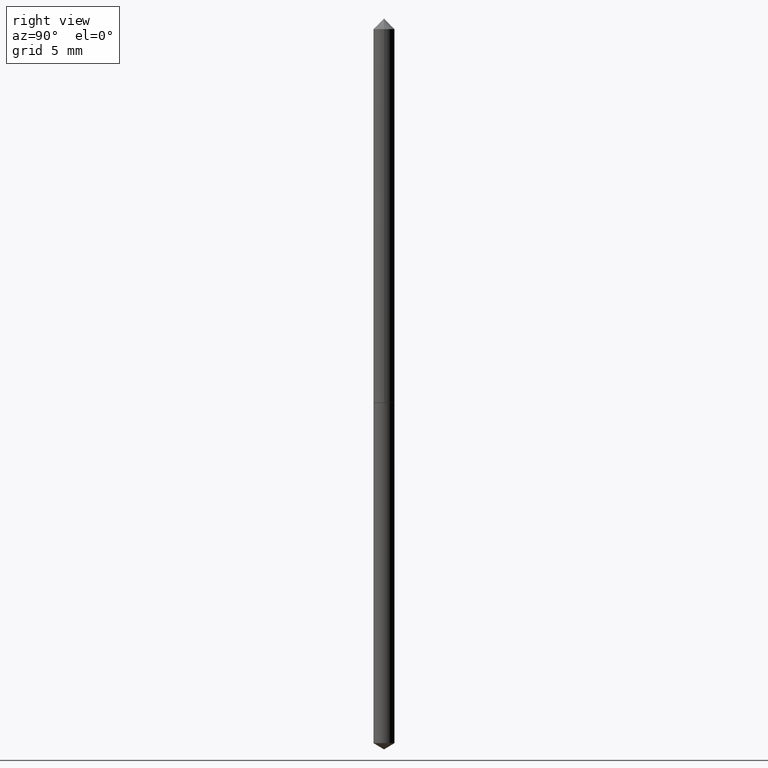
[diagram: clean part render]
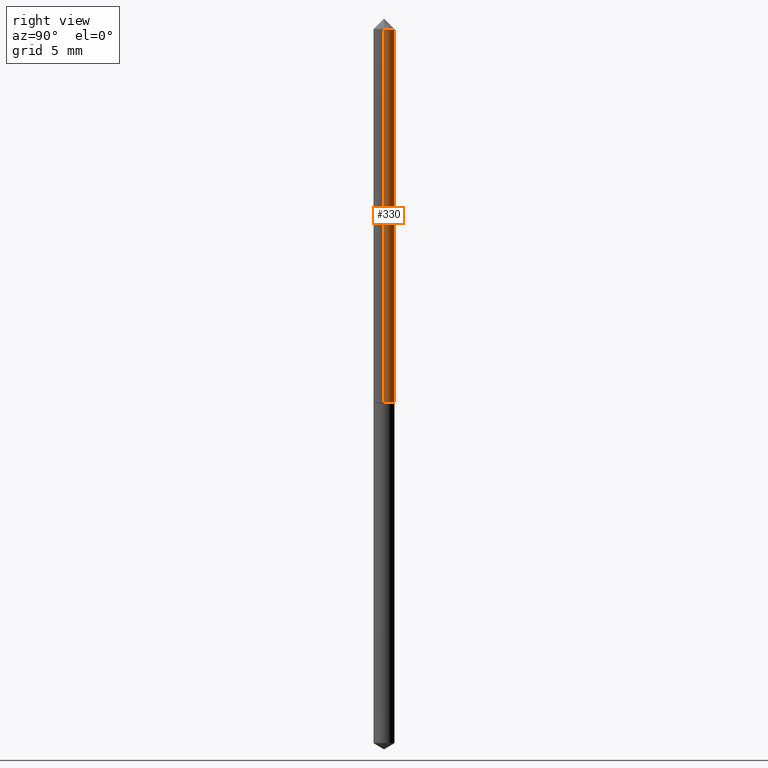
[diagram: same view with one face highlighted and labeled with its STEP entity id]
A machine part, right view. The second image highlights one B-rep face of the part: STEP entity #330.
In plain terms, the highlighted cylindrical surface (edge-blend (fillet) strip) has radius 0.5461 mm, axis along (-0, 0, 1).
Its self-contained STEP definition (entity closure, byte-faithful):
#13 = CARTESIAN_POINT ( 'NONE',  ( 0.02150000000000005726, -1.501336975702551248E-16, 1.048378006796128830E-30 ) ) ;
#19 = AXIS2_PLACEMENT_3D ( 'NONE', #265, #295, #204 ) ;
#21 = DIRECTION ( 'NONE',  ( -2.445468806185136877E-29, 3.491481338843145188E-15, 1.000000000000000000 ) ) ;
#32 = EDGE_CURVE ( 'NONE', #334, #247, #340, .T. ) ;
#43 = CIRCLE ( 'NONE', #19, 0.02150000000000000522 ) ;
#45 = DIRECTION ( 'NONE',  ( -2.445468806185136877E-29, 3.491481338843145188E-15, 1.000000000000000000 ) ) ;
#49 = AXIS2_PLACEMENT_3D ( 'NONE', #318, #98, #124 ) ;
#70 = VERTEX_POINT ( 'NONE', #151 ) ;
#82 = ORIENTED_EDGE ( 'NONE', *, *, #205, .T. ) ;
#98 = DIRECTION ( 'NONE',  ( -2.445468806185136597E-29, 3.491481338843145583E-15, 1.000000000000000000 ) ) ;
#104 = DIRECTION ( 'NONE',  ( 1.000000000000000000, -6.982962677686265922E-15, 4.876176775795935232E-29 ) ) ;
#115 = VERTEX_POINT ( 'NONE', #346 ) ;
#122 = CARTESIAN_POINT ( 'NONE',  ( -0.02150000000000000522, -1.285287188247597701E-15, -0.03125000000000020817 ) ) ;
#124 = DIRECTION ( 'NONE',  ( 1.000000000000000000, -6.982962677686276966E-15, 0.000000000000000000 ) ) ;
#135 = CYLINDRICAL_SURFACE ( 'NONE', #174, 0.02150000000000005726 ) ;
#137 = FACE_OUTER_BOUND ( 'NONE', #308, .T. ) ;
#145 = ORIENTED_EDGE ( 'NONE', *, *, #192, .F. ) ;
#151 = CARTESIAN_POINT ( 'NONE',  ( 0.02150000000000010236, -2.917132658603448820E-15, -0.7925000000000000933 ) ) ;
#166 = CIRCLE ( 'NONE', #49, 0.02150000000000010236 ) ;
#174 = AXIS2_PLACEMENT_3D ( 'NONE', #301, #213, #104 ) ;
#192 = EDGE_CURVE ( 'NONE', #115, #247, #43, .T. ) ;
#195 = CARTESIAN_POINT ( 'NONE',  ( -0.02150000000000010236, -2.614232272844770738E-15, -0.7925000000000000933 ) ) ;
#201 = CARTESIAN_POINT ( 'NONE',  ( -0.02150000000000005726, 1.527666881884219468E-16, -1.057571044404807502E-30 ) ) ;
#204 = DIRECTION ( 'NONE',  ( 1.000000000000000000, -6.982962677686265922E-15, 0.000000000000000000 ) ) ;
#205 = EDGE_CURVE ( 'NONE', #70, #334, #166, .T. ) ;
#213 = DIRECTION ( 'NONE',  ( -2.445468806185136597E-29, 3.491481338843145583E-15, 1.000000000000000000 ) ) ;
#228 = ORIENTED_EDGE ( 'NONE', *, *, #32, .T. ) ;
#239 = VECTOR ( 'NONE', #21, 39.37007874015748143 ) ;
#247 = VERTEX_POINT ( 'NONE', #122 ) ;
#265 = CARTESIAN_POINT ( 'NONE',  ( 7.642090019328602662E-31, -1.091087918388490267E-16, -0.03125000000000020817 ) ) ;
#295 = DIRECTION ( 'NONE',  ( -2.445468806185136597E-29, 3.491481338843145583E-15, 1.000000000000000000 ) ) ;
#301 = CARTESIAN_POINT ( 'NONE',  ( 0.000000000000000000, 0.000000000000000000, 0.000000000000000000 ) ) ;
#308 = EDGE_LOOP ( 'NONE', ( #82, #228, #145, #332 ) ) ;
#318 = CARTESIAN_POINT ( 'NONE',  ( 1.938034028901720955E-29, -2.766998961033193203E-15, -0.7925000000000000933 ) ) ;
#324 = LINE ( 'NONE', #13, #335 ) ;
#330 = ADVANCED_FACE ( 'NONE', ( #137 ), #135, .T. ) ;
#332 = ORIENTED_EDGE ( 'NONE', *, *, #341, .F. ) ;
#334 = VERTEX_POINT ( 'NONE', #195 ) ;
#335 = VECTOR ( 'NONE', #45, 39.37007874015748143 ) ;
#340 = LINE ( 'NONE', #201, #239 ) ;
#341 = EDGE_CURVE ( 'NONE', #70, #115, #324, .T. ) ;
#346 = CARTESIAN_POINT ( 'NONE',  ( 0.02150000000000000522, -2.592424894091037817E-16, -0.03125000000000020817 ) ) ;